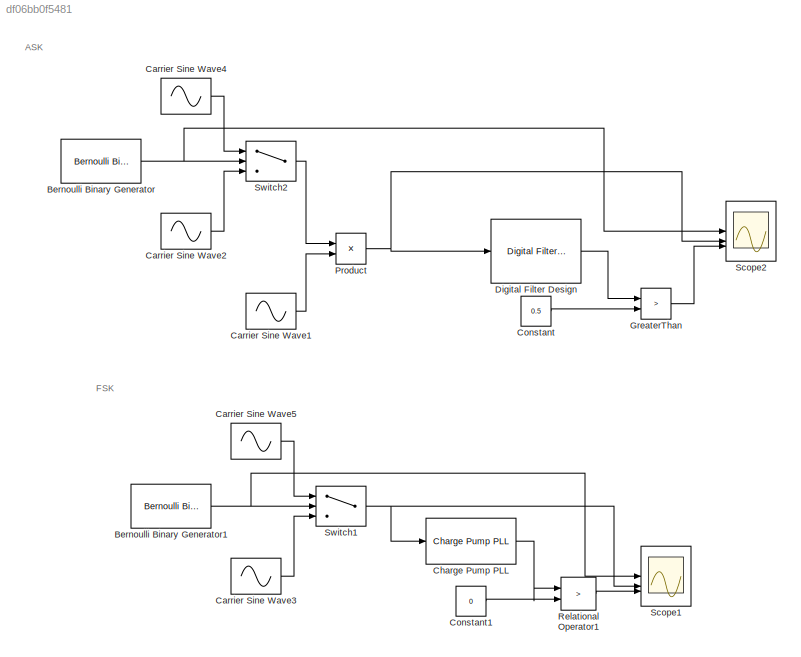
MODEL slx_df06bb0f5481
KIND model
CONFIG AbsTol = auto
CONFIG EnableMultiTasking = off
CONFIG FixedStep = auto
CONFIG MaxStep = auto
CONFIG MinStep = auto
CONFIG RelTol = 1e-3
CONFIG SampleTimeConstraint = Unconstrained
CONFIG SolverName = VariableStepAuto
CONFIG StartTime = 0.0
CONFIG StopTime = 50
WORKSPACE source: mxarray member
WORKSPACE TargetFrequency_56 = 2100000000
WORKSPACE TargetFrequency_64 = 2100000000
WORKSPACE TargetPhaseNoise_56 = [-85 -125 -150 -180]
WORKSPACE TargetPhaseNoise_64 = [-85 -125 -150 -180]
WORKSPACE uniqueStringPll_56 = '52_8533'
WORKSPACE uniqueStringPll_64 = '16_5649'
BLOCK [Reference] Bernoulli Binary Generator  REF=commrandsrc3/Bernoulli Binary
Generator
  SourceBlock = commrandsrc3/Bernoulli Binary\nGenerator
  SourceType = Bernoulli Binary Generator
BLOCK [Reference] Bernoulli Binary Generator1  REF=commrandsrc3/Bernoulli Binary
Generator
  SourceBlock = commrandsrc3/Bernoulli Binary\nGenerator
  SourceType = Bernoulli Binary Generator
BLOCK [Sin] Carrier Sine Wave1
  Frequency = 2*pi*4
  SampleTime = 0.01
BLOCK [Sin] Carrier Sine Wave2
  Amplitude = 0.5
  Frequency = 2*pi*4
  SampleTime = 0.01
BLOCK [Sin] Carrier Sine Wave3
  Frequency = 2*pi*4
  SampleTime = 0
BLOCK [Sin] Carrier Sine Wave4
  Amplitude = 2
  Frequency = 2*pi*4
  SampleTime = 0.01
BLOCK [Sin] Carrier Sine Wave5
  Frequency = 2*pi*12
  SampleTime = 0
BLOCK [Reference] Charge Pump PLL  REF=commsynccomp2/Charge Pump
PLL
  NameLocation = top
  SourceBlock = commsynccomp2/Charge Pump\nPLL
  SourceType = Charge Pump PLL
BLOCK [Constant] Constant
  Value = 0.5
BLOCK [Constant] Constant1
  Value = 0
BLOCK [Reference] Digital Filter Design  REF=dspfdesign/Digital
Filter Design
  NameLocation = top
  SourceBlock = dspfdesign/Digital\nFilter Design
  SourceType = Digital Filter Design
  UserDataPersistent = on
BLOCK [RelationalOperator] GreaterThan
  InputSameDT = off
  Operator = >
  OutDataTypeStr = boolean
  RndMeth = Simplest
BLOCK [Product] Product
BLOCK [RelationalOperator] Relational Operator1
  InputSameDT = off
  Operator = >
  OutDataTypeStr = boolean
  RndMeth = Simplest
BLOCK [Scope] Scope1
  Floating = off
  NumInputPorts = 3
  ScopeSpecificationString = Simulink.scopes.TimeScopeBlockCfg('CurrentConfiguration', extmgr.ConfigurationSet(extmgr.Configuration('Core','General UI',true),extmgr.Configuration('Core','Source UI',true),extmgr.Configuration('Sources','WiredSimulink',true),extmgr.Configuration('Visuals','Time Domain',true,'SerializedDisplays',{struct('MinYLimReal','-0.125','MaxYLimReal','1.125','YLabelReal','','MinYLimMag','0.00000','MaxYLimM...<+2644ch>
BLOCK [Scope] Scope2
  Floating = off
  NumInputPorts = 3
  ScopeSpecificationString = Simulink.scopes.TimeScopeBlockCfg('CurrentConfiguration', extmgr.ConfigurationSet(extmgr.Configuration('Core','General UI',true),extmgr.Configuration('Core','Source UI',true),extmgr.Configuration('Sources','WiredSimulink',true,'DataLoggingVariableName','ScopeData1'),extmgr.Configuration('Visuals','Time Domain',true,'SerializedDisplays',{struct('MinYLimReal','-0.125','MaxYLimReal','1.125','YLabelRe...<+2674ch>
BLOCK [Switch] Switch1
  Criteria = u2 > Threshold
  InputSameDT = off
  SaturateOnIntegerOverflow = off
  Threshold = 0.5
BLOCK [Switch] Switch2
  Criteria = u2 > Threshold
  InputSameDT = off
  SaturateOnIntegerOverflow = off
  Threshold = 0.5
ANNOTATION (root): ASK
ANNOTATION (root): FSK
NET Bernoulli Binary Generator1:1 -> Scope1:1, Switch1:2
NET Bernoulli Binary Generator:1 -> Scope2:1, Switch2:2
LINE Carrier Sine Wave1:1 -> Product:2
LINE Carrier Sine Wave2:1 -> Switch2:3
LINE Carrier Sine Wave3:1 -> Switch1:3
LINE Carrier Sine Wave4:1 -> Switch2:1
LINE Carrier Sine Wave5:1 -> Switch1:1
LINE Charge Pump PLL:1 -> Relational Operator1:1
LINE Constant1:1 -> Relational Operator1:2
LINE Constant:1 -> GreaterThan:2
LINE Digital Filter Design:1 -> GreaterThan:1
LINE GreaterThan:1 -> Scope2:3
NET Product:1 -> Digital Filter Design:1, Scope2:2
LINE Relational Operator1:1 -> Scope1:3
NET Switch1:1 -> Charge Pump PLL:1, Scope1:2
LINE Switch2:1 -> Product:1
note: NET lines group one-source signal fan-out (src -> all destinations, sorted); 1:1 wires keep LINE
